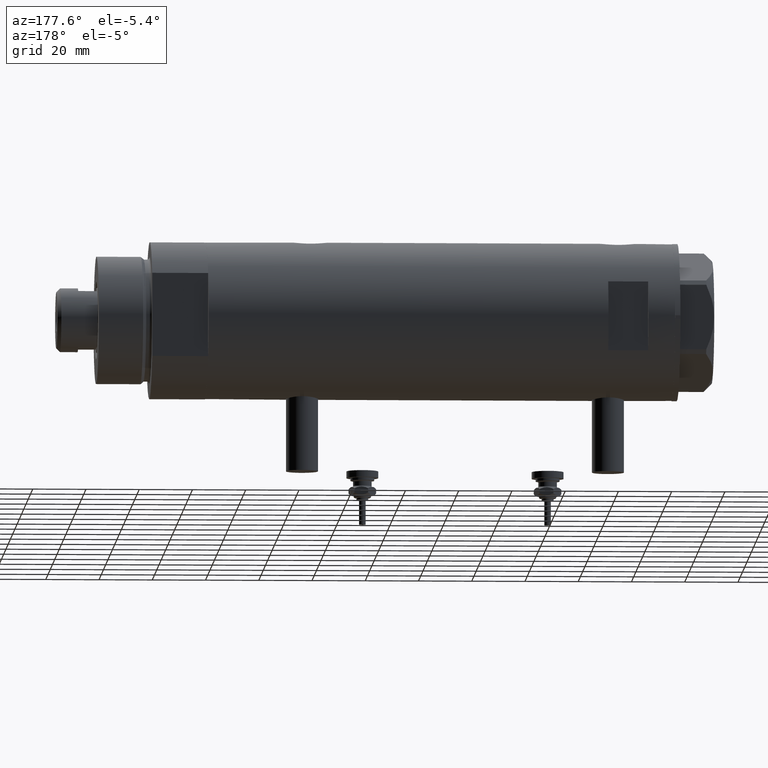
[diagram: clean part render]
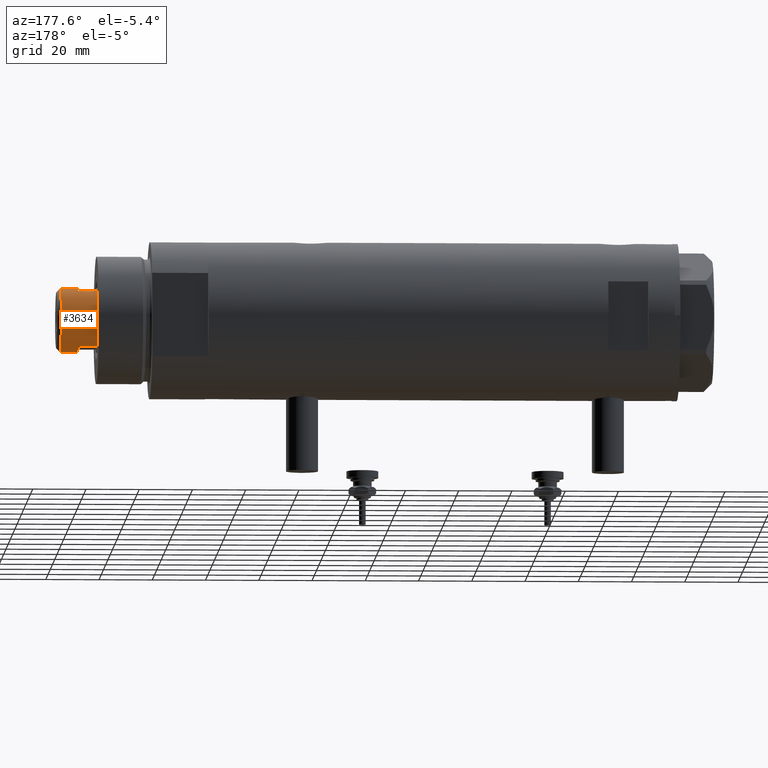
[diagram: same view with one face highlighted and labeled with its STEP entity id]
A machine part, auxiliary view. The second image highlights one B-rep face of the part: STEP entity #3634.
In plain terms, the highlighted cylindrical surface (edge-blend (fillet) strip) has radius 12 mm, axis along (-1, -0, 0).
Its self-contained STEP definition (entity closure, byte-faithful):
#75 = LINE ( 'NONE', #5049, #151 ) ;
#87 = DIRECTION ( 'NONE',  ( 1.000000000000000000, 0.000000000000000000, 0.000000000000000000 ) ) ;
#113 = ORIENTED_EDGE ( 'NONE', *, *, #1653, .T. ) ;
#151 = VECTOR ( 'NONE', #1401, 1000.000000000000000 ) ;
#346 = AXIS2_PLACEMENT_3D ( 'NONE', #556, #582, #3332 ) ;
#361 = VERTEX_POINT ( 'NONE', #4672 ) ;
#556 = CARTESIAN_POINT ( 'NONE',  ( 0.000000000000000000, 0.000000000000000000, 206.2999999999999829 ) ) ;
#582 = DIRECTION ( 'NONE',  ( 0.000000000000000000, 0.000000000000000000, -1.000000000000000000 ) ) ;
#595 = ORIENTED_EDGE ( 'NONE', *, *, #1166, .F. ) ;
#607 = ORIENTED_EDGE ( 'NONE', *, *, #4946, .T. ) ;
#814 = LINE ( 'NONE', #4024, #3552 ) ;
#844 = DIRECTION ( 'NONE',  ( -0.000000000000000000, -0.000000000000000000, -1.000000000000000000 ) ) ;
#1021 = CARTESIAN_POINT ( 'NONE',  ( 0.000000000000000000, 0.000000000000000000, 199.6999999999999886 ) ) ;
#1161 = VERTEX_POINT ( 'NONE', #1270 ) ;
#1166 = EDGE_CURVE ( 'NONE', #1691, #361, #3092, .T. ) ;
#1270 = CARTESIAN_POINT ( 'NONE',  ( 10.48861764008966269, 5.830000000000000071, 192.6999999999999886 ) ) ;
#1401 = DIRECTION ( 'NONE',  ( -0.000000000000000000, -0.000000000000000000, -1.000000000000000000 ) ) ;
#1591 = AXIS2_PLACEMENT_3D ( 'NONE', #2304, #5611, #3795 ) ;
#1653 = EDGE_CURVE ( 'NONE', #5358, #4776, #4414, .T. ) ;
#1691 = VERTEX_POINT ( 'NONE', #5593 ) ;
#1848 = AXIS2_PLACEMENT_3D ( 'NONE', #3663, #4169, #87 ) ;
#2110 = VECTOR ( 'NONE', #2633, 1000.000000000000000 ) ;
#2145 = CIRCLE ( 'NONE', #5412, 12.00000000000000178 ) ;
#2284 = ORIENTED_EDGE ( 'NONE', *, *, #3889, .T. ) ;
#2304 = CARTESIAN_POINT ( 'NONE',  ( 0.000000000000000000, 0.000000000000000000, 192.6999999999999886 ) ) ;
#2462 = ORIENTED_EDGE ( 'NONE', *, *, #5335, .T. ) ;
#2633 = DIRECTION ( 'NONE',  ( -0.000000000000000000, -0.000000000000000000, -1.000000000000000000 ) ) ;
#2651 = ORIENTED_EDGE ( 'NONE', *, *, #5529, .T. ) ;
#2740 = ORIENTED_EDGE ( 'NONE', *, *, #4950, .T. ) ;
#2983 = VECTOR ( 'NONE', #844, 1000.000000000000000 ) ;
#3092 = LINE ( 'NONE', #4489, #2110 ) ;
#3302 = CIRCLE ( 'NONE', #346, 12.00000000000000000 ) ;
#3332 = DIRECTION ( 'NONE',  ( 1.000000000000000000, 0.000000000000000000, 0.000000000000000000 ) ) ;
#3385 = CARTESIAN_POINT ( 'NONE',  ( 10.48861764008966269, 5.830000000000000071, 199.6999999999999886 ) ) ;
#3422 = DIRECTION ( 'NONE',  ( 0.000000000000000000, 0.000000000000000000, 1.000000000000000000 ) ) ;
#3552 = VECTOR ( 'NONE', #5866, 1000.000000000000000 ) ;
#3634 = ADVANCED_FACE ( 'NONE', ( #4618 ), #4080, .T. ) ;
#3659 = EDGE_LOOP ( 'NONE', ( #2740, #2284, #113, #2462, #607, #595, #2651, #5021 ) ) ;
#3663 = CARTESIAN_POINT ( 'NONE',  ( 0.000000000000000000, 0.000000000000000000, 199.6999999999999886 ) ) ;
#3795 = DIRECTION ( 'NONE',  ( 1.000000000000000000, 0.000000000000000000, 0.000000000000000000 ) ) ;
#3889 = EDGE_CURVE ( 'NONE', #5905, #5358, #3988, .T. ) ;
#3937 = EDGE_CURVE ( 'NONE', #5246, #5055, #814, .T. ) ;
#3988 = LINE ( 'NONE', #5810, #2983 ) ;
#4024 = CARTESIAN_POINT ( 'NONE',  ( -12.00000000000000000, 0.000000000000000000, 199.6999999999999886 ) ) ;
#4080 = CYLINDRICAL_SURFACE ( 'NONE', #4613, 12.00000000000000000 ) ;
#4169 = DIRECTION ( 'NONE',  ( 0.000000000000000000, 0.000000000000000000, 1.000000000000000000 ) ) ;
#4253 = CIRCLE ( 'NONE', #1591, 12.00000000000001066 ) ;
#4279 = CARTESIAN_POINT ( 'NONE',  ( -12.00000000000000355, 0.000000000000000000, 199.6999999999999886 ) ) ;
#4414 = CIRCLE ( 'NONE', #1848, 12.00000000000000178 ) ;
#4489 = CARTESIAN_POINT ( 'NONE',  ( -10.48861764008966269, 5.829999999999999183, 199.6999999999999886 ) ) ;
#4491 = CARTESIAN_POINT ( 'NONE',  ( 12.00000000000000355, 1.469576158976824342E-15, 199.6999999999999886 ) ) ;
#4613 = AXIS2_PLACEMENT_3D ( 'NONE', #5118, #5510, #5474 ) ;
#4618 = FACE_OUTER_BOUND ( 'NONE', #3659, .T. ) ;
#4672 = CARTESIAN_POINT ( 'NONE',  ( -10.48861764008966446, 5.830000000000016946, 192.6999999999999886 ) ) ;
#4776 = VERTEX_POINT ( 'NONE', #3385 ) ;
#4924 = CARTESIAN_POINT ( 'NONE',  ( 12.00000000000000000, 1.469576158976823947E-15, 206.2999999999999829 ) ) ;
#4946 = EDGE_CURVE ( 'NONE', #1161, #361, #4253, .T. ) ;
#4950 = EDGE_CURVE ( 'NONE', #5246, #5905, #3302, .T. ) ;
#5021 = ORIENTED_EDGE ( 'NONE', *, *, #3937, .F. ) ;
#5049 = CARTESIAN_POINT ( 'NONE',  ( 10.48861764008966269, 5.830000000000000071, 199.6999999999999886 ) ) ;
#5055 = VERTEX_POINT ( 'NONE', #4279 ) ;
#5118 = CARTESIAN_POINT ( 'NONE',  ( 0.000000000000000000, 0.000000000000000000, 199.6999999999999886 ) ) ;
#5246 = VERTEX_POINT ( 'NONE', #5480 ) ;
#5260 = DIRECTION ( 'NONE',  ( 1.000000000000000000, 0.000000000000000000, 0.000000000000000000 ) ) ;
#5335 = EDGE_CURVE ( 'NONE', #4776, #1161, #75, .T. ) ;
#5358 = VERTEX_POINT ( 'NONE', #4491 ) ;
#5412 = AXIS2_PLACEMENT_3D ( 'NONE', #1021, #3422, #5260 ) ;
#5474 = DIRECTION ( 'NONE',  ( -1.000000000000000000, 0.000000000000000000, 0.000000000000000000 ) ) ;
#5480 = CARTESIAN_POINT ( 'NONE',  ( -12.00000000000000000, 0.000000000000000000, 206.2999999999999829 ) ) ;
#5510 = DIRECTION ( 'NONE',  ( -0.000000000000000000, -0.000000000000000000, -1.000000000000000000 ) ) ;
#5529 = EDGE_CURVE ( 'NONE', #1691, #5055, #2145, .T. ) ;
#5593 = CARTESIAN_POINT ( 'NONE',  ( -10.48861764008966269, 5.829999999999999183, 199.6999999999999886 ) ) ;
#5611 = DIRECTION ( 'NONE',  ( 0.000000000000000000, 0.000000000000000000, 1.000000000000000000 ) ) ;
#5810 = CARTESIAN_POINT ( 'NONE',  ( 12.00000000000000000, 1.469576158976823947E-15, 199.6999999999999886 ) ) ;
#5866 = DIRECTION ( 'NONE',  ( -0.000000000000000000, -0.000000000000000000, -1.000000000000000000 ) ) ;
#5905 = VERTEX_POINT ( 'NONE', #4924 ) ;